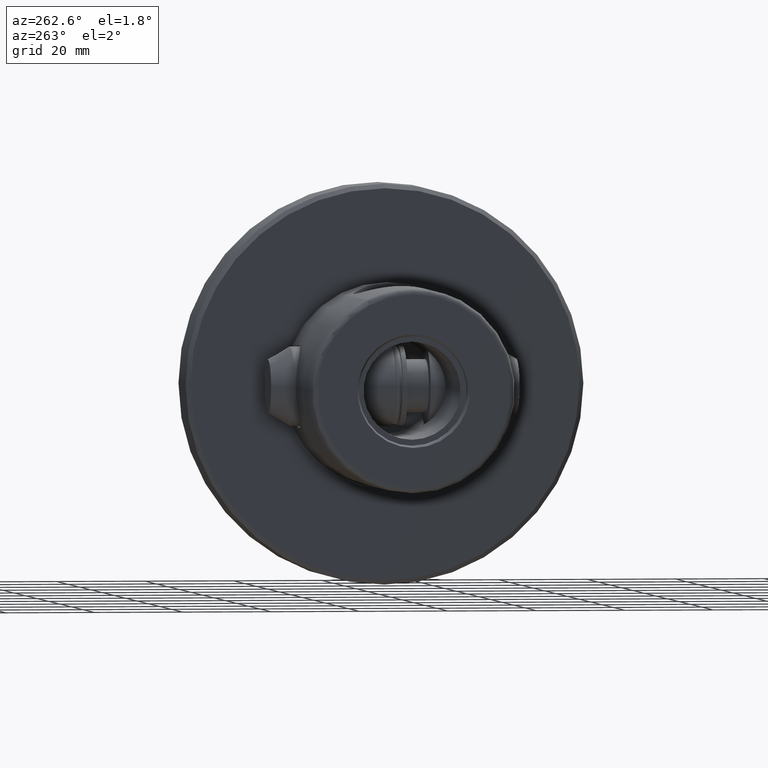
[diagram: clean part render]
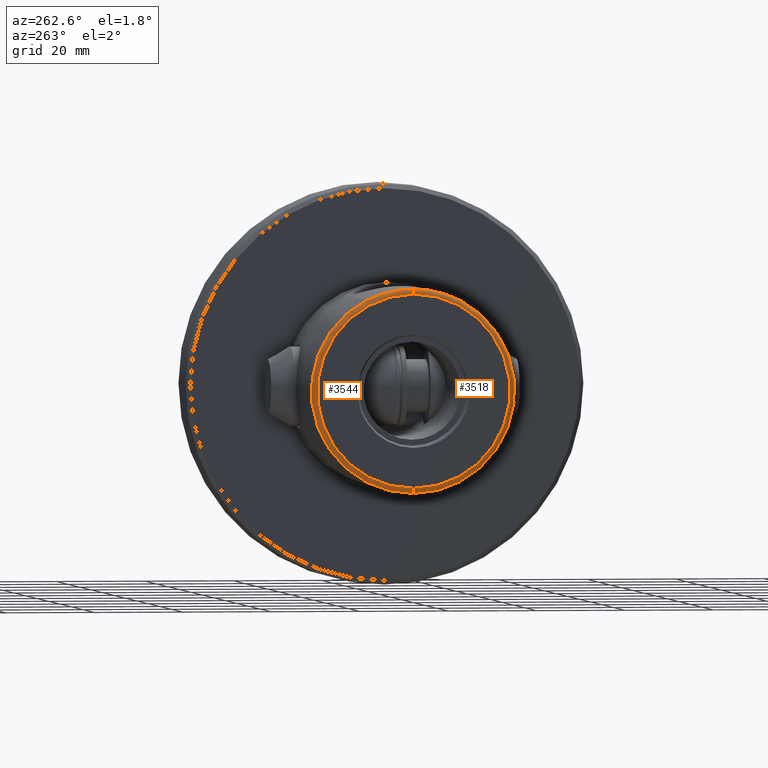
[diagram: same view with one multi-face feature highlighted, each face labeled with its STEP entity id]
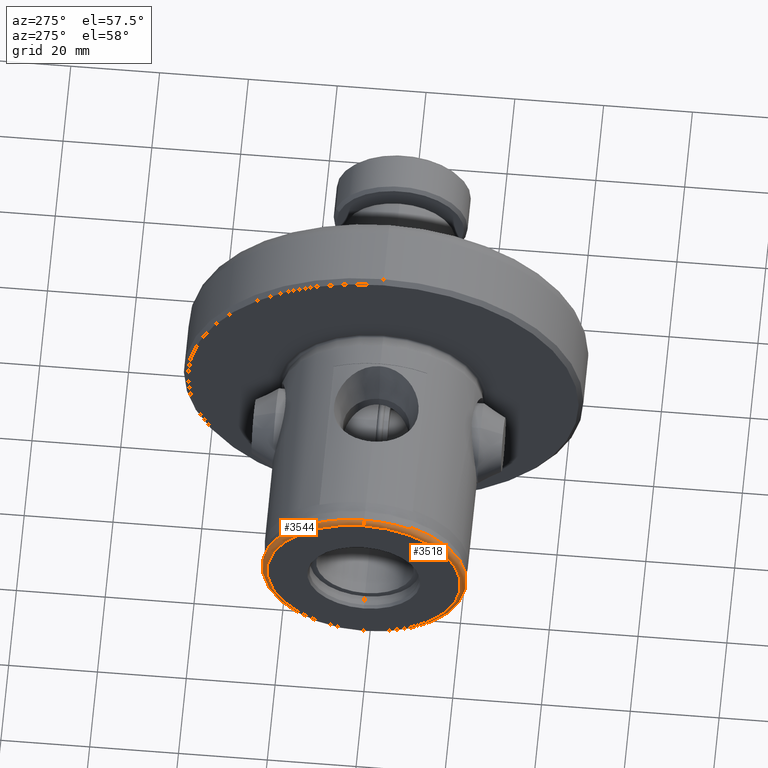
[diagram: same view with one multi-face feature highlighted, each face labeled with its STEP entity id]
A machine part, auxiliary view. The highlighted faces form ONE feature: a constant-radius fillet chain: 2 tangent blend faces with common blend radius 1.2 mm. The faces share edges in the B-rep.
A second angle (auxiliary view) of the same feature is appended — it is thin or edge-on in the first view.
Their STEP definitions:
[1] entity #3518 (Torus):
#19 = CIRCLE ( 'NONE', #5828, 1.199999999999999700 ) ;
#146 = CARTESIAN_POINT ( 'NONE',  ( 1.408377813200316600, 0.0000000000000000000, 0.0000000000000000000 ) ) ;
#401 = DIRECTION ( 'NONE',  ( 0.0000000000000000000, 0.0000000000000000000, 1.000000000000000000 ) ) ;
#425 = DIRECTION ( 'NONE',  ( -1.000000000000000000, -0.0000000000000000000, -0.0000000000000000000 ) ) ;
#590 = ORIENTED_EDGE ( 'NONE', *, *, #2535, .F. ) ;
#591 = ORIENTED_EDGE ( 'NONE', *, *, #2621, .F. ) ;
#594 = ORIENTED_EDGE ( 'NONE', *, *, #2821, .T. ) ;
#726 = ORIENTED_EDGE ( 'NONE', *, *, #2624, .F. ) ;
#738 = ORIENTED_EDGE ( 'NONE', *, *, #2993, .F. ) ;
#747 = ORIENTED_EDGE ( 'NONE', *, *, #2669, .T. ) ;
#938 = CIRCLE ( 'NONE', #5887, 22.98176930361463700 ) ;
#1381 = DIRECTION ( 'NONE',  ( 0.0000000000000000000, 0.0000000000000000000, 1.000000000000000000 ) ) ;
#1382 = DIRECTION ( 'NONE',  ( -1.000000000000000000, -0.0000000000000000000, -0.0000000000000000000 ) ) ;
#1390 = CARTESIAN_POINT ( 'NONE',  ( -2.168404344971008900E-016, 0.0000000000000000000, 0.0000000000000000000 ) ) ;
#1823 = FACE_OUTER_BOUND ( 'NONE', #8348, .T. ) ;
#1965 = B_SPLINE_CURVE_WITH_KNOTS ( 'NONE', 3,
 ( #5658, #5666, #5667, #5668, #5669, #5659, #5671, #5672 ),
 .UNSPECIFIED., .F., .F.,
 ( 4, 2, 2, 4 ),
 ( 0.01096767425756588000, 0.01645303229737640100, 0.01919571131728166000, 0.02193839033718691900 ),
 .UNSPECIFIED. ) ;
#1972 = B_SPLINE_CURVE_WITH_KNOTS ( 'NONE', 3,
 ( #4655, #4782, #4700, #4779, #4778, #4654 ),
 .UNSPECIFIED., .F., .F.,
 ( 4, 2, 4 ),
 ( 0.0002109018025941014400, 0.0005092274162575697600, 0.0008075530299210380000 ),
 .UNSPECIFIED. ) ;
#2535 = EDGE_CURVE ( 'NONE', #7690, #7805, #1965, .T. ) ;
#2621 = EDGE_CURVE ( 'NONE', #7805, #7883, #1972, .T. ) ;
#2624 = EDGE_CURVE ( 'NONE', #7568, #7675, #2747, .T. ) ;
#2669 = EDGE_CURVE ( 'NONE', #7690, #7676, #19, .T. ) ;
#2747 = CIRCLE ( 'NONE', #5812, 1.199999999999999700 ) ;
#2821 = EDGE_CURVE ( 'NONE', #7568, #7883, #938, .T. ) ;
#2993 = EDGE_CURVE ( 'NONE', #7675, #7676, #3791, .T. ) ;
#3518 = ADVANCED_FACE ( 'NONE', ( #1823 ), #8123, .T. ) ;
#3791 = CIRCLE ( 'NONE', #5982, 21.79999999999998600 ) ;
#4013 = CARTESIAN_POINT ( 'NONE',  ( 0.8185000324558988600, -10.49999999999999100, 20.39338192968112700 ) ) ;
#4098 = CARTESIAN_POINT ( 'NONE',  ( 0.7961435898738626900, 2.126229816196612000E-011, 22.93000000000000000 ) ) ;
#4111 = CARTESIAN_POINT ( 'NONE',  ( -2.168404344971008900E-016, 0.0000000000000000000, 21.79999999999998600 ) ) ;
#4112 = CARTESIAN_POINT ( 'NONE',  ( -2.168404344971008900E-016, 2.742092521891342400E-015, -21.79999999999998600 ) ) ;
#4472 = CARTESIAN_POINT ( 'NONE',  ( 1.408377813200315100, -10.50000000000000000, 20.44288923622500700 ) ) ;
#4635 = CARTESIAN_POINT ( 'NONE',  ( 1.200000000000000000, 0.0000000000000000000, 21.79999999999998600 ) ) ;
#4637 = DIRECTION ( 'NONE',  ( 0.0000000000000000000, 0.0000000000000000000, -1.000000000000000000 ) ) ;
#4638 = DIRECTION ( 'NONE',  ( 0.0000000000000000000, -1.000000000000000000, 0.0000000000000000000 ) ) ;
#4653 = DIRECTION ( 'NONE',  ( -0.0000000000000000000, 1.000000000000000000, 1.224646799147353200E-016 ) ) ;
#4654 = CARTESIAN_POINT ( 'NONE',  ( 1.408377813200315100, -10.50000000000000000, 20.44288923622500700 ) ) ;
#4655 = CARTESIAN_POINT ( 'NONE',  ( 0.8185000324558988600, -10.49999999999999100, 20.39338192968112700 ) ) ;
#4696 = DIRECTION ( 'NONE',  ( 0.0000000000000000000, -1.224646799147353200E-016, 1.000000000000000000 ) ) ;
#4700 = CARTESIAN_POINT ( 'NONE',  ( 1.011006488030290300, -10.50000000000000200, 20.45122320302410700 ) ) ;
#4778 = CARTESIAN_POINT ( 'NONE',  ( 1.310297513710117800, -10.50000000000000000, 20.46233127207385700 ) ) ;
#4779 = CARTESIAN_POINT ( 'NONE',  ( 1.209181590907476600, -10.50000000000000000, 20.46795897942463300 ) ) ;
#4782 = CARTESIAN_POINT ( 'NONE',  ( 0.9115690033200595200, -10.50000000000000000, 20.42848271968690100 ) ) ;
#4794 = CARTESIAN_POINT ( 'NONE',  ( 1.200000000000000000, 2.669730022141228500E-015, -21.79999999999998600 ) ) ;
#5049 = CARTESIAN_POINT ( 'NONE',  ( 1.408377813200316600, 2.814455021641456300E-015, -22.98176930361463700 ) ) ;
#5658 = CARTESIAN_POINT ( 'NONE',  ( 0.7961435898738626900, 2.126229816196612000E-011, 22.93000000000000000 ) ) ;
#5659 = CARTESIAN_POINT ( 'NONE',  ( 0.8114143439310957900, -8.850230647836186300, 21.17868327123003200 ) ) ;
#5666 = CARTESIAN_POINT ( 'NONE',  ( 0.7961435898738475900, -1.821909231682214500, 22.93000000000168000 ) ) ;
#5667 = CARTESIAN_POINT ( 'NONE',  ( 0.7979528454685074200, -3.614498732741970400, 22.71652628858371900 ) ) ;
#5668 = CARTESIAN_POINT ( 'NONE',  ( 0.8034713059164680900, -6.259977781617052100, 22.08028833945482800 ) ) ;
#5669 = CARTESIAN_POINT ( 'NONE',  ( 0.8058013005137303300, -7.138540295273854100, 21.81319825193980600 ) ) ;
#5671 = CARTESIAN_POINT ( 'NONE',  ( 0.8146963744908493100, -9.685496864642956900, 20.81131299066795000 ) ) ;
#5672 = CARTESIAN_POINT ( 'NONE',  ( 0.8185000324558988600, -10.49999999999999100, 20.39338192968112700 ) ) ;
#5812 = AXIS2_PLACEMENT_3D ( 'NONE', #4794, #4653, #4696 ) ;
#5828 = AXIS2_PLACEMENT_3D ( 'NONE', #4635, #4638, #4637 ) ;
#5887 = AXIS2_PLACEMENT_3D ( 'NONE', #146, #425, #401 ) ;
#5982 = AXIS2_PLACEMENT_3D ( 'NONE', #1390, #1382, #1381 ) ;
#6073 = AXIS2_PLACEMENT_3D ( 'NONE', #7152, #7031, #7343 ) ;
#7031 = DIRECTION ( 'NONE',  ( -1.000000000000000000, -0.0000000000000000000, -0.0000000000000000000 ) ) ;
#7152 = CARTESIAN_POINT ( 'NONE',  ( 1.200000000000000000, 0.0000000000000000000, 0.0000000000000000000 ) ) ;
#7343 = DIRECTION ( 'NONE',  ( 0.0000000000000000000, 0.0000000000000000000, 1.000000000000000000 ) ) ;
#7568 = VERTEX_POINT ( 'NONE', #5049 ) ;
#7675 = VERTEX_POINT ( 'NONE', #4112 ) ;
#7676 = VERTEX_POINT ( 'NONE', #4111 ) ;
#7690 = VERTEX_POINT ( 'NONE', #4098 ) ;
#7805 = VERTEX_POINT ( 'NONE', #4013 ) ;
#7883 = VERTEX_POINT ( 'NONE', #4472 ) ;
#8123 = TOROIDAL_SURFACE ( 'NONE', #6073, 21.79999999999998600, 1.200000000000000200 ) ;
#8348 = EDGE_LOOP ( 'NONE', ( #726, #594, #591, #590, #747, #738 ) ) ;
[2] entity #3544 (Torus):
#19 = CIRCLE ( 'NONE', #5828, 1.199999999999999700 ) ;
#169 = CARTESIAN_POINT ( 'NONE',  ( -2.168404344971008900E-016, 0.0000000000000000000, 0.0000000000000000000 ) ) ;
#180 = DIRECTION ( 'NONE',  ( 0.0000000000000000000, 0.0000000000000000000, 1.000000000000000000 ) ) ;
#183 = DIRECTION ( 'NONE',  ( -1.000000000000000000, -0.0000000000000000000, -0.0000000000000000000 ) ) ;
#928 = CIRCLE ( 'NONE', #5881, 21.79999999999998600 ) ;
#1098 = CARTESIAN_POINT ( 'NONE',  ( 0.9122295538135581900, 10.50000000000000200, 20.42873184508226100 ) ) ;
#1145 = CARTESIAN_POINT ( 'NONE',  ( 1.009774872830895300, 10.50000000000000000, 20.45114116327729500 ) ) ;
#1148 = CARTESIAN_POINT ( 'NONE',  ( 0.8185000324559057500, 10.50000000000000200, 20.39338192968112700 ) ) ;
#1152 = CARTESIAN_POINT ( 'NONE',  ( 1.210876320087329600, 10.50000000000000400, 20.46808007823571900 ) ) ;
#1154 = CARTESIAN_POINT ( 'NONE',  ( 1.310213527009351300, 10.50000000000000000, 20.46234792039627200 ) ) ;
#1165 = CARTESIAN_POINT ( 'NONE',  ( 1.408377813200316600, 10.50000000000000200, 20.44288923622499600 ) ) ;
#2009 = B_SPLINE_CURVE_WITH_KNOTS ( 'NONE', 3,
 ( #3185, #3181, #3180, #3179, #3178, #3177, #3174, #3176, #3175, #3173, #3171, #3172 ),
 .UNSPECIFIED., .F., .F.,
 ( 4, 2, 2, 2, 2, 4 ),
 ( 2.244873171188056400E-007, 0.002742086929879311900, 0.005483949372441502200, 0.008225811815003692500, 0.009596743036284785500, 0.01096767425756588000 ),
 .UNSPECIFIED. ) ;
#2023 = B_SPLINE_CURVE_WITH_KNOTS ( 'NONE', 3,
 ( #1165, #1154, #1152, #1145, #1098, #1148 ),
 .UNSPECIFIED., .F., .F.,
 ( 4, 2, 4 ),
 ( 0.007229435538965940700, 0.007526883680598124600, 0.007824331822230308500 ),
 .UNSPECIFIED. ) ;
#2624 = EDGE_CURVE ( 'NONE', #7568, #7675, #2747, .T. ) ;
#2669 = EDGE_CURVE ( 'NONE', #7690, #7676, #19, .T. ) ;
#2747 = CIRCLE ( 'NONE', #5812, 1.199999999999999700 ) ;
#2814 = EDGE_CURVE ( 'NONE', #7676, #7675, #928, .T. ) ;
#2932 = EDGE_CURVE ( 'NONE', #7801, #7690, #2009, .T. ) ;
#2934 = EDGE_CURVE ( 'NONE', #7907, #7568, #6530, .T. ) ;
#2984 = EDGE_CURVE ( 'NONE', #7907, #7801, #2023, .T. ) ;
#3167 = DIRECTION ( 'NONE',  ( 0.0000000000000000000, 0.0000000000000000000, 1.000000000000000000 ) ) ;
#3168 = DIRECTION ( 'NONE',  ( -1.000000000000000000, -0.0000000000000000000, -0.0000000000000000000 ) ) ;
#3171 = CARTESIAN_POINT ( 'NONE',  ( 0.7961435898738655800, 0.4553416987682097300, 22.92999999999958000 ) ) ;
#3172 = CARTESIAN_POINT ( 'NONE',  ( 0.7961435898738626900, 2.126229816196612000E-011, 22.93000000000000000 ) ) ;
#3173 = CARTESIAN_POINT ( 'NONE',  ( 0.7962600950672408300, 0.9138656586906905900, 22.91635392838949800 ) ) ;
#3174 = CARTESIAN_POINT ( 'NONE',  ( 0.7984498175584922000, 3.623999280907119300, 22.66073101200444400 ) ) ;
#3175 = CARTESIAN_POINT ( 'NONE',  ( 0.7967237668511073500, 1.823551586540807000, 22.86212325482631200 ) ) ;
#3176 = CARTESIAN_POINT ( 'NONE',  ( 0.7970702506963646100, 2.275668030303231100, 22.82161878937103700 ) ) ;
#3177 = CARTESIAN_POINT ( 'NONE',  ( 0.7998211777738116800, 4.512223203480432200, 22.50110686654318900 ) ) ;
#3178 = CARTESIAN_POINT ( 'NONE',  ( 0.8034914117537030900, 6.267518473837940400, 22.07798491057461000 ) ) ;
#3179 = CARTESIAN_POINT ( 'NONE',  ( 0.8057899123334338900, 7.134591725631367800, 21.81449644753784500 ) ) ;
#3180 = CARTESIAN_POINT ( 'NONE',  ( 0.8114017464129486000, 8.846862781030717200, 21.18009653595384400 ) ) ;
#3181 = CARTESIAN_POINT ( 'NONE',  ( 0.8146975057861044500, 9.685739116585146700, 20.81118868837018400 ) ) ;
#3185 = CARTESIAN_POINT ( 'NONE',  ( 0.8185000324559057500, 10.50000000000000200, 20.39338192968112700 ) ) ;
#3189 = CARTESIAN_POINT ( 'NONE',  ( 1.408377813200316600, 0.0000000000000000000, 0.0000000000000000000 ) ) ;
#3544 = ADVANCED_FACE ( 'NONE', ( #8173 ), #8175, .T. ) ;
#4017 = CARTESIAN_POINT ( 'NONE',  ( 0.8185000324559057500, 10.50000000000000200, 20.39338192968112700 ) ) ;
#4098 = CARTESIAN_POINT ( 'NONE',  ( 0.7961435898738626900, 2.126229816196612000E-011, 22.93000000000000000 ) ) ;
#4111 = CARTESIAN_POINT ( 'NONE',  ( -2.168404344971008900E-016, 0.0000000000000000000, 21.79999999999998600 ) ) ;
#4112 = CARTESIAN_POINT ( 'NONE',  ( -2.168404344971008900E-016, 2.742092521891342400E-015, -21.79999999999998600 ) ) ;
#4496 = CARTESIAN_POINT ( 'NONE',  ( 1.408377813200316600, 10.50000000000000200, 20.44288923622499600 ) ) ;
#4561 = ORIENTED_EDGE ( 'NONE', *, *, #2624, .T. ) ;
#4577 = ORIENTED_EDGE ( 'NONE', *, *, #2669, .F. ) ;
#4635 = CARTESIAN_POINT ( 'NONE',  ( 1.200000000000000000, 0.0000000000000000000, 21.79999999999998600 ) ) ;
#4637 = DIRECTION ( 'NONE',  ( 0.0000000000000000000, 0.0000000000000000000, -1.000000000000000000 ) ) ;
#4638 = DIRECTION ( 'NONE',  ( 0.0000000000000000000, -1.000000000000000000, 0.0000000000000000000 ) ) ;
#4653 = DIRECTION ( 'NONE',  ( -0.0000000000000000000, 1.000000000000000000, 1.224646799147353200E-016 ) ) ;
#4696 = DIRECTION ( 'NONE',  ( 0.0000000000000000000, -1.224646799147353200E-016, 1.000000000000000000 ) ) ;
#4794 = CARTESIAN_POINT ( 'NONE',  ( 1.200000000000000000, 2.669730022141228500E-015, -21.79999999999998600 ) ) ;
#5049 = CARTESIAN_POINT ( 'NONE',  ( 1.408377813200316600, 2.814455021641456300E-015, -22.98176930361463700 ) ) ;
#5812 = AXIS2_PLACEMENT_3D ( 'NONE', #4794, #4653, #4696 ) ;
#5828 = AXIS2_PLACEMENT_3D ( 'NONE', #4635, #4638, #4637 ) ;
#5881 = AXIS2_PLACEMENT_3D ( 'NONE', #169, #183, #180 ) ;
#5949 = AXIS2_PLACEMENT_3D ( 'NONE', #3189, #3168, #3167 ) ;
#6102 = AXIS2_PLACEMENT_3D ( 'NONE', #7248, #7164, #7215 ) ;
#6138 = ORIENTED_EDGE ( 'NONE', *, *, #2934, .T. ) ;
#6144 = ORIENTED_EDGE ( 'NONE', *, *, #2984, .F. ) ;
#6145 = ORIENTED_EDGE ( 'NONE', *, *, #2932, .F. ) ;
#6146 = ORIENTED_EDGE ( 'NONE', *, *, #2814, .F. ) ;
#6530 = CIRCLE ( 'NONE', #5949, 22.98176930361463700 ) ;
#7164 = DIRECTION ( 'NONE',  ( -1.000000000000000000, -0.0000000000000000000, -0.0000000000000000000 ) ) ;
#7215 = DIRECTION ( 'NONE',  ( 0.0000000000000000000, 0.0000000000000000000, 1.000000000000000000 ) ) ;
#7248 = CARTESIAN_POINT ( 'NONE',  ( 1.200000000000000000, 0.0000000000000000000, 0.0000000000000000000 ) ) ;
#7568 = VERTEX_POINT ( 'NONE', #5049 ) ;
#7675 = VERTEX_POINT ( 'NONE', #4112 ) ;
#7676 = VERTEX_POINT ( 'NONE', #4111 ) ;
#7690 = VERTEX_POINT ( 'NONE', #4098 ) ;
#7801 = VERTEX_POINT ( 'NONE', #4017 ) ;
#7907 = VERTEX_POINT ( 'NONE', #4496 ) ;
#8173 = FACE_OUTER_BOUND ( 'NONE', #8346, .T. ) ;
#8175 = TOROIDAL_SURFACE ( 'NONE', #6102, 21.79999999999998600, 1.200000000000000200 ) ;
#8346 = EDGE_LOOP ( 'NONE', ( #6138, #4561, #6146, #4577, #6145, #6144 ) ) ;